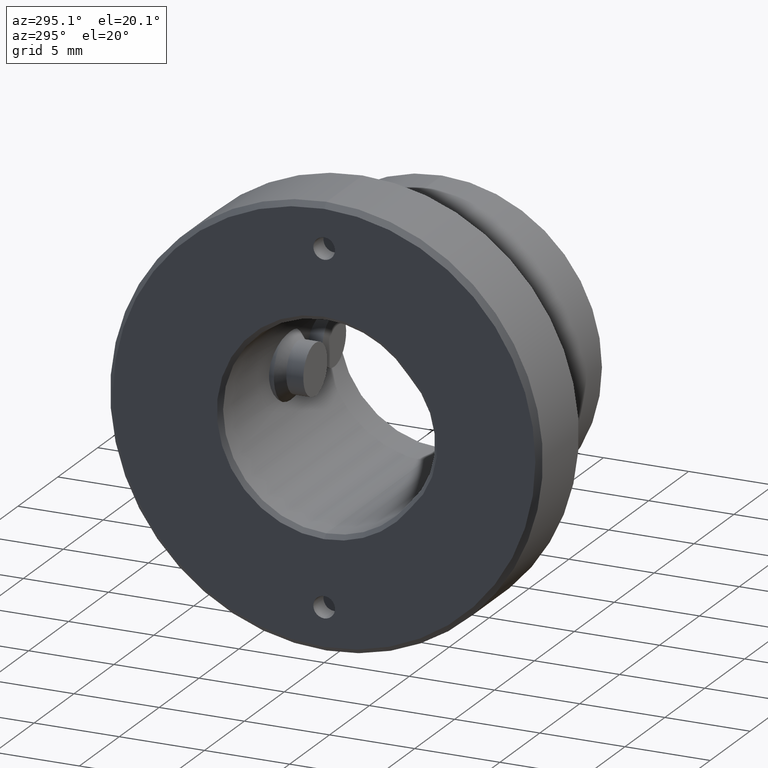
[diagram: clean part render]
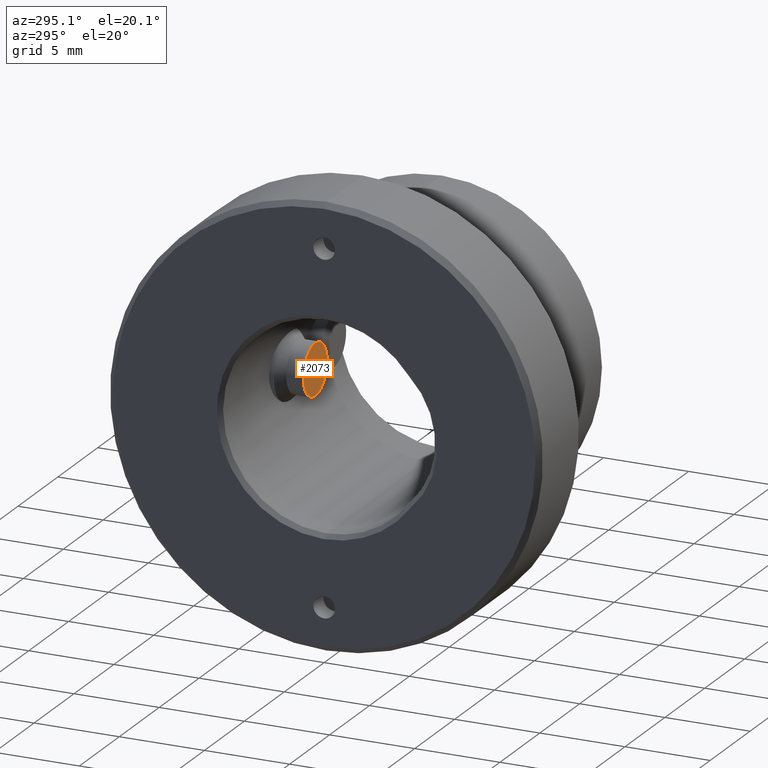
[diagram: same view with one face highlighted and labeled with its STEP entity id]
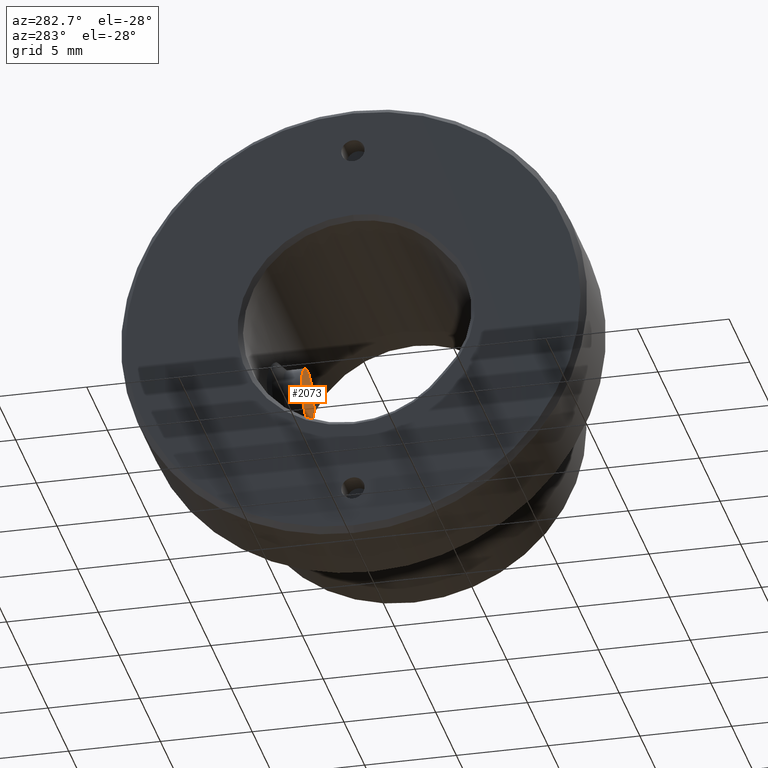
[diagram: same view with one face highlighted and labeled with its STEP entity id]
A machine part, auxiliary view. The second image highlights one B-rep face of the part: STEP entity #2073.
A second angle (auxiliary view) of the same face is appended — the face is thin or edge-on in the first view.
In plain terms, the highlighted planar face has unit normal (0, -1, -0).
Its self-contained STEP definition (entity closure, byte-faithful):
#255 = CARTESIAN_POINT ( 'NONE',  ( 8.000000000000001776, 4.267381158747629577, -7.017527842198724807E-17 ) ) ;
#334 = PLANE ( 'NONE',  #2316 ) ;
#403 = EDGE_LOOP ( 'NONE', ( #3986, #797 ) ) ;
#743 = FACE_OUTER_BOUND ( 'NONE', #403, .T. ) ;
#797 = ORIENTED_EDGE ( 'NONE', *, *, #2384, .T. ) ;
#1132 = VERTEX_POINT ( 'NONE', #3612 ) ;
#1145 = CARTESIAN_POINT ( 'NONE',  ( 8.000000000000001776, 4.267381158747629577, -7.017527842198724807E-17 ) ) ;
#1679 = DIRECTION ( 'NONE',  ( -0.2325108840037029556, 0.000000000000000000, -0.9725937943560079013 ) ) ;
#1829 = CARTESIAN_POINT ( 'NONE',  ( 7.651233673994447315, 4.267381158747629577, -1.458890691534011852 ) ) ;
#1951 = DIRECTION ( 'NONE',  ( 5.083153145339589237E-16, -1.000000000000000000, -1.738507377522522658E-17 ) ) ;
#2001 = EDGE_CURVE ( 'NONE', #1132, #2743, #3140, .T. ) ;
#2073 = ADVANCED_FACE ( 'NONE', ( #743 ), #334, .T. ) ;
#2214 = DIRECTION ( 'NONE',  ( 5.083153145339587265E-16, -1.000000000000000000, -1.738507377522551624E-17 ) ) ;
#2316 = AXIS2_PLACEMENT_3D ( 'NONE', #255, #2214, #4186 ) ;
#2384 = EDGE_CURVE ( 'NONE', #2743, #1132, #4103, .T. ) ;
#2439 = DIRECTION ( 'NONE',  ( 5.083153145339589237E-16, -1.000000000000000000, -1.738507377522522658E-17 ) ) ;
#2743 = VERTEX_POINT ( 'NONE', #1829 ) ;
#3083 = DIRECTION ( 'NONE',  ( -0.2325108840037029556, 0.000000000000000000, -0.9725937943560079013 ) ) ;
#3140 = CIRCLE ( 'NONE', #3941, 1.500000000000000444 ) ;
#3612 = CARTESIAN_POINT ( 'NONE',  ( 8.348766326005556238, 4.267381158747629577, 1.458890691534011852 ) ) ;
#3941 = AXIS2_PLACEMENT_3D ( 'NONE', #1145, #1951, #3083 ) ;
#3986 = ORIENTED_EDGE ( 'NONE', *, *, #2001, .T. ) ;
#4103 = CIRCLE ( 'NONE', #4769, 1.500000000000000444 ) ;
#4186 = DIRECTION ( 'NONE',  ( -0.2325108840037028723, -1.012802282667053271E-16, -0.9725937943560077903 ) ) ;
#4769 = AXIS2_PLACEMENT_3D ( 'NONE', #4817, #2439, #1679 ) ;
#4817 = CARTESIAN_POINT ( 'NONE',  ( 8.000000000000001776, 4.267381158747629577, -7.017527842198724807E-17 ) ) ;